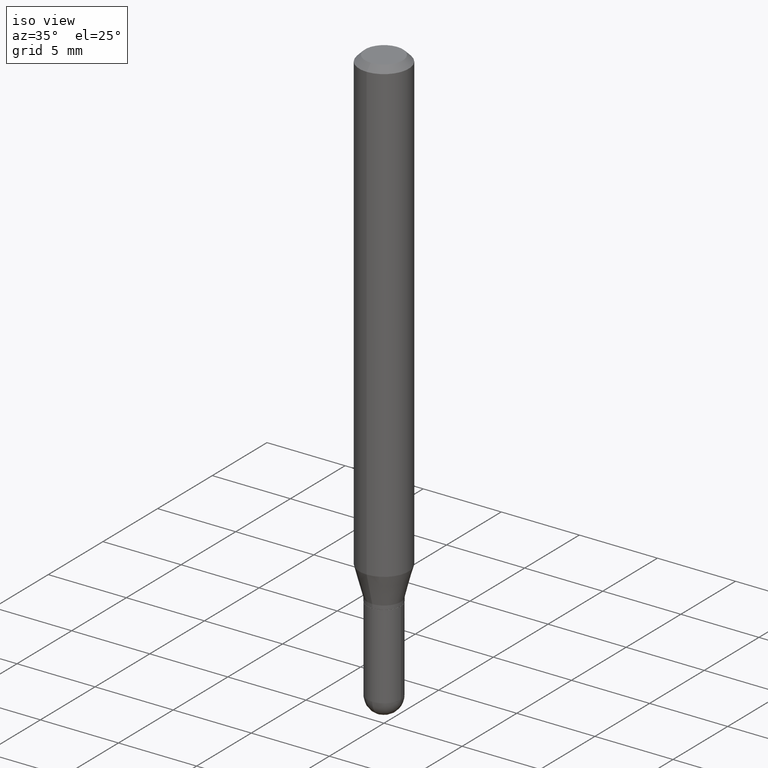
[diagram: clean part render]
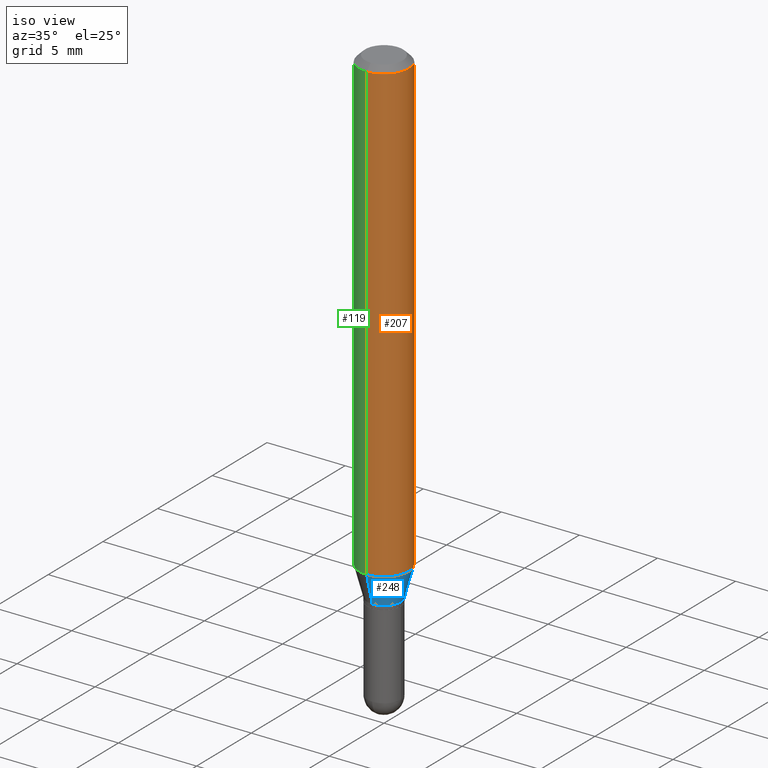
[diagram: same view with three faces highlighted in distinct colors, each labeled with its STEP entity id]
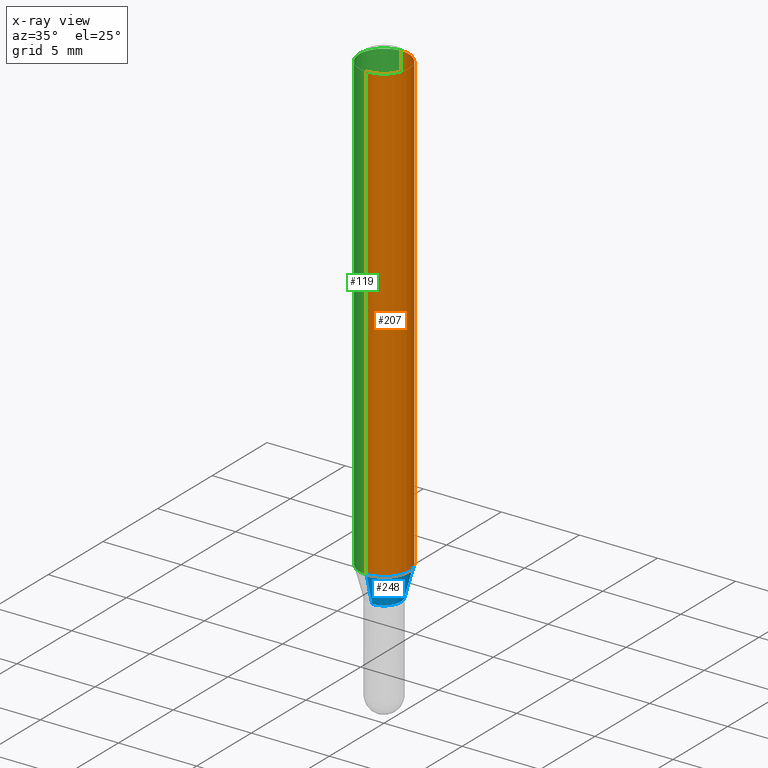
[diagram: x-ray of the same camera — body ghosted, the three highlighted faces saturated]
A machine part, iso view with three faces highlighted in distinct colors.
The next image is the same camera in x-ray (body ghosted, the three faces saturated) — at least one of them is partly hidden behind the body in this view.
Their STEP definitions:

[orange] entity #207 — the highlighted cylindrical surface (edge-blend (fillet) strip) has radius 1.5875 mm, axis along (-0, 0, 1).
#6 = EDGE_CURVE ( 'NONE', #243, #298, #480, .T. ) ;
#13 = DIRECTION ( 'NONE',  ( -2.445524153731471341E-29, 3.491402078006607573E-15, 1.000000000000000000 ) ) ;
#29 = CARTESIAN_POINT ( 'NONE',  ( 4.440892098500911138E-16, 0.06249999999999995143, -0.01500000000000022669 ) ) ;
#35 = LINE ( 'NONE', #237, #300 ) ;
#63 = VECTOR ( 'NONE', #71, 39.37007874015748143 ) ;
#71 = DIRECTION ( 'NONE',  ( -2.445524153731471341E-29, 3.491402078006607967E-15, 1.000000000000000000 ) ) ;
#98 = DIRECTION ( 'NONE',  ( -6.982962677686265922E-15, -1.000000000000000000, 4.370956789862821150E-15 ) ) ;
#104 = DIRECTION ( 'NONE',  ( -6.982962677686265922E-15, -1.000000000000000000, 3.483106191921935554E-15 ) ) ;
#109 = DIRECTION ( 'NONE',  ( -6.982962677686265922E-15, -1.000000000000000000, 3.491402078006607573E-15 ) ) ;
#142 = CARTESIAN_POINT ( 'NONE',  ( 3.668286230597209534E-31, -5.237103117009914490E-17, -0.01500000000000000812 ) ) ;
#146 = EDGE_CURVE ( 'NONE', #298, #458, #206, .T. ) ;
#148 = CARTESIAN_POINT ( 'NONE',  ( 4.440892098500625669E-16, 0.06250000000000000000, -2.182126298754129733E-16 ) ) ;
#150 = CARTESIAN_POINT ( 'NONE',  ( -4.364351673553912750E-16, -0.06250000000000005551, -0.01499999999999979128 ) ) ;
#155 = CIRCLE ( 'NONE', #357, 0.06250000000000000000 ) ;
#206 = LINE ( 'NONE', #148, #63 ) ;
#207 = ADVANCED_FACE ( 'NONE', ( #454 ), #419, .T. ) ;
#215 = EDGE_CURVE ( 'NONE', #354, #458, #155, .T. ) ;
#224 = DIRECTION ( 'NONE',  ( -2.445524153731471341E-29, 3.491402078006607573E-15, 1.000000000000000000 ) ) ;
#227 = CARTESIAN_POINT ( 'NONE',  ( 4.440892098500911138E-16, 0.06249999999999597544, -1.160358983848622794 ) ) ;
#237 = CARTESIAN_POINT ( 'NONE',  ( -4.364351673553916201E-16, -0.06250000000000000000, 2.182126298754129733E-16 ) ) ;
#241 = AXIS2_PLACEMENT_3D ( 'NONE', #369, #224, #109 ) ;
#243 = VERTEX_POINT ( 'NONE', #417 ) ;
#271 = ORIENTED_EDGE ( 'NONE', *, *, #215, .F. ) ;
#298 = VERTEX_POINT ( 'NONE', #227 ) ;
#300 = VECTOR ( 'NONE', #503, 39.37007874015748143 ) ;
#303 = ORIENTED_EDGE ( 'NONE', *, *, #146, .T. ) ;
#338 = EDGE_CURVE ( 'NONE', #243, #354, #35, .T. ) ;
#354 = VERTEX_POINT ( 'NONE', #150 ) ;
#357 = AXIS2_PLACEMENT_3D ( 'NONE', #142, #13, #104 ) ;
#369 = CARTESIAN_POINT ( 'NONE',  ( 0.000000000000000000, 0.000000000000000000, 0.000000000000000000 ) ) ;
#370 = ORIENTED_EDGE ( 'NONE', *, *, #338, .F. ) ;
#372 = AXIS2_PLACEMENT_3D ( 'NONE', #446, #477, #98 ) ;
#385 = ORIENTED_EDGE ( 'NONE', *, *, #6, .T. ) ;
#417 = CARTESIAN_POINT ( 'NONE',  ( -4.364351673553629253E-16, -0.06250000000000401068, -1.160358983848622128 ) ) ;
#419 = CYLINDRICAL_SURFACE ( 'NONE', #241, 0.06250000000000000000 ) ;
#446 = CARTESIAN_POINT ( 'NONE',  ( 2.837685922001112883E-29, -4.051279767442715559E-15, -1.160358983848622572 ) ) ;
#454 = FACE_OUTER_BOUND ( 'NONE', #462, .T. ) ;
#458 = VERTEX_POINT ( 'NONE', #29 ) ;
#462 = EDGE_LOOP ( 'NONE', ( #385, #303, #271, #370 ) ) ;
#477 = DIRECTION ( 'NONE',  ( -2.445524153731471341E-29, 3.491402078006607573E-15, 1.000000000000000000 ) ) ;
#480 = CIRCLE ( 'NONE', #372, 0.06250000000000000000 ) ;
#503 = DIRECTION ( 'NONE',  ( -2.445524153731471341E-29, 3.491402078006607967E-15, 1.000000000000000000 ) ) ;

[blue] entity #248 — the highlighted conical surface has half-angle 15 deg.
#6 = EDGE_CURVE ( 'NONE', #243, #298, #480, .T. ) ;
#24 = DIRECTION ( 'NONE',  ( -2.445524153731471341E-29, 3.491402078006607573E-15, 1.000000000000000000 ) ) ;
#34 = ORIENTED_EDGE ( 'NONE', *, *, #277, .F. ) ;
#38 = AXIS2_PLACEMENT_3D ( 'NONE', #336, #24, #451 ) ;
#58 = VERTEX_POINT ( 'NONE', #209 ) ;
#98 = DIRECTION ( 'NONE',  ( -6.982962677686265922E-15, -1.000000000000000000, 4.370956789862821150E-15 ) ) ;
#158 = VERTEX_POINT ( 'NONE', #294 ) ;
#180 = VECTOR ( 'NONE', #499, 39.37007874015748143 ) ;
#185 = FACE_OUTER_BOUND ( 'NONE', #475, .T. ) ;
#187 = CARTESIAN_POINT ( 'NONE',  ( -2.967759138016355400E-16, -0.04250000000000423578, -1.234999999999999876 ) ) ;
#193 = LINE ( 'NONE', #345, #180 ) ;
#199 = ORIENTED_EDGE ( 'NONE', *, *, #450, .T. ) ;
#209 = CARTESIAN_POINT ( 'NONE',  ( -2.967759138016355400E-16, -0.04250000000000423578, -1.234999999999999876 ) ) ;
#218 = DIRECTION ( 'NONE',  ( -1.807323732225329350E-15, -0.2588190451025180194, 0.9659258262890689783 ) ) ;
#227 = CARTESIAN_POINT ( 'NONE',  ( 4.440892098500911138E-16, 0.06249999999999597544, -1.160358983848622794 ) ) ;
#229 = DIRECTION ( 'NONE',  ( -6.982962677686266711E-15, -1.000000000000000000, 6.427877632151220009E-15 ) ) ;
#243 = VERTEX_POINT ( 'NONE', #417 ) ;
#248 = ADVANCED_FACE ( 'NONE', ( #185 ), #301, .T. ) ;
#266 = LINE ( 'NONE', #187, #382 ) ;
#277 = EDGE_CURVE ( 'NONE', #58, #243, #266, .T. ) ;
#282 = CARTESIAN_POINT ( 'NONE',  ( 3.020222329858367571E-29, -4.311881566338161202E-15, -1.235000000000000098 ) ) ;
#294 = CARTESIAN_POINT ( 'NONE',  ( 3.730349362740815744E-16, 0.04249999999999561073, -1.235000000000000320 ) ) ;
#298 = VERTEX_POINT ( 'NONE', #227 ) ;
#301 = CONICAL_SURFACE ( 'NONE', #38, 0.04249999999999991979, 0.2617993877991501850 ) ;
#318 = ORIENTED_EDGE ( 'NONE', *, *, #463, .T. ) ;
#336 = CARTESIAN_POINT ( 'NONE',  ( 3.020222329858367571E-29, -4.311881566338161202E-15, -1.235000000000000098 ) ) ;
#345 = CARTESIAN_POINT ( 'NONE',  ( 3.019806626980721830E-16, 0.04249999999999561073, -1.235000000000000320 ) ) ;
#372 = AXIS2_PLACEMENT_3D ( 'NONE', #446, #477, #98 ) ;
#382 = VECTOR ( 'NONE', #218, 39.37007874015749564 ) ;
#399 = AXIS2_PLACEMENT_3D ( 'NONE', #282, #440, #229 ) ;
#417 = CARTESIAN_POINT ( 'NONE',  ( -4.364351673553629253E-16, -0.06250000000000401068, -1.160358983848622128 ) ) ;
#440 = DIRECTION ( 'NONE',  ( -2.445524153731471341E-29, 3.491402078006607573E-15, 1.000000000000000000 ) ) ;
#446 = CARTESIAN_POINT ( 'NONE',  ( 2.837685922001112883E-29, -4.051279767442715559E-15, -1.160358983848622572 ) ) ;
#450 = EDGE_CURVE ( 'NONE', #58, #158, #489, .T. ) ;
#451 = DIRECTION ( 'NONE',  ( -6.982962677686266711E-15, -1.000000000000000000, 6.427877632151220009E-15 ) ) ;
#452 = ORIENTED_EDGE ( 'NONE', *, *, #6, .F. ) ;
#463 = EDGE_CURVE ( 'NONE', #158, #298, #193, .T. ) ;
#475 = EDGE_LOOP ( 'NONE', ( #199, #318, #452, #34 ) ) ;
#477 = DIRECTION ( 'NONE',  ( -2.445524153731471341E-29, 3.491402078006607573E-15, 1.000000000000000000 ) ) ;
#480 = CIRCLE ( 'NONE', #372, 0.06250000000000000000 ) ;
#489 = CIRCLE ( 'NONE', #399, 0.04249999999999991979 ) ;
#499 = DIRECTION ( 'NONE',  ( 1.839019923739599526E-15, 0.2588190451025248473, 0.9659258262890670910 ) ) ;

[green] entity #119 — the highlighted cylindrical surface (edge-blend (fillet) strip) has radius 1.5875 mm, axis along (-0, 0, 1).
#8 = DIRECTION ( 'NONE',  ( -6.982962677686265922E-15, -1.000000000000000000, 3.491402078006607573E-15 ) ) ;
#29 = CARTESIAN_POINT ( 'NONE',  ( 4.440892098500911138E-16, 0.06249999999999995143, -0.01500000000000022669 ) ) ;
#31 = ORIENTED_EDGE ( 'NONE', *, *, #146, .F. ) ;
#35 = LINE ( 'NONE', #237, #300 ) ;
#56 = DIRECTION ( 'NONE',  ( -2.445524153731471341E-29, 3.491402078006607573E-15, 1.000000000000000000 ) ) ;
#63 = VECTOR ( 'NONE', #71, 39.37007874015748143 ) ;
#71 = DIRECTION ( 'NONE',  ( -2.445524153731471341E-29, 3.491402078006607967E-15, 1.000000000000000000 ) ) ;
#72 = EDGE_LOOP ( 'NONE', ( #31, #101, #311, #120 ) ) ;
#80 = DIRECTION ( 'NONE',  ( -6.982962677686265922E-15, -1.000000000000000000, 4.370956789862821150E-15 ) ) ;
#85 = EDGE_CURVE ( 'NONE', #458, #354, #299, .T. ) ;
#97 = CIRCLE ( 'NONE', #276, 0.06250000000000000000 ) ;
#101 = ORIENTED_EDGE ( 'NONE', *, *, #410, .T. ) ;
#119 = ADVANCED_FACE ( 'NONE', ( #244 ), #204, .T. ) ;
#120 = ORIENTED_EDGE ( 'NONE', *, *, #85, .F. ) ;
#146 = EDGE_CURVE ( 'NONE', #298, #458, #206, .T. ) ;
#148 = CARTESIAN_POINT ( 'NONE',  ( 4.440892098500625669E-16, 0.06250000000000000000, -2.182126298754129733E-16 ) ) ;
#150 = CARTESIAN_POINT ( 'NONE',  ( -4.364351673553912750E-16, -0.06250000000000005551, -0.01499999999999979128 ) ) ;
#204 = CYLINDRICAL_SURFACE ( 'NONE', #406, 0.06250000000000000000 ) ;
#206 = LINE ( 'NONE', #148, #63 ) ;
#227 = CARTESIAN_POINT ( 'NONE',  ( 4.440892098500911138E-16, 0.06249999999999597544, -1.160358983848622794 ) ) ;
#237 = CARTESIAN_POINT ( 'NONE',  ( -4.364351673553916201E-16, -0.06250000000000000000, 2.182126298754129733E-16 ) ) ;
#239 = CARTESIAN_POINT ( 'NONE',  ( 2.837685922001112883E-29, -4.051279767442715559E-15, -1.160358983848622572 ) ) ;
#243 = VERTEX_POINT ( 'NONE', #417 ) ;
#244 = FACE_OUTER_BOUND ( 'NONE', #72, .T. ) ;
#276 = AXIS2_PLACEMENT_3D ( 'NONE', #239, #500, #80 ) ;
#298 = VERTEX_POINT ( 'NONE', #227 ) ;
#299 = CIRCLE ( 'NONE', #325, 0.06250000000000000000 ) ;
#300 = VECTOR ( 'NONE', #503, 39.37007874015748143 ) ;
#311 = ORIENTED_EDGE ( 'NONE', *, *, #338, .T. ) ;
#321 = DIRECTION ( 'NONE',  ( -6.982962677686265922E-15, -1.000000000000000000, 3.483106191921935554E-15 ) ) ;
#324 = CARTESIAN_POINT ( 'NONE',  ( 3.668286230597209534E-31, -5.237103117009914490E-17, -0.01500000000000000812 ) ) ;
#325 = AXIS2_PLACEMENT_3D ( 'NONE', #324, #56, #321 ) ;
#338 = EDGE_CURVE ( 'NONE', #243, #354, #35, .T. ) ;
#354 = VERTEX_POINT ( 'NONE', #150 ) ;
#406 = AXIS2_PLACEMENT_3D ( 'NONE', #512, #483, #8 ) ;
#410 = EDGE_CURVE ( 'NONE', #298, #243, #97, .T. ) ;
#417 = CARTESIAN_POINT ( 'NONE',  ( -4.364351673553629253E-16, -0.06250000000000401068, -1.160358983848622128 ) ) ;
#458 = VERTEX_POINT ( 'NONE', #29 ) ;
#483 = DIRECTION ( 'NONE',  ( -2.445524153731471341E-29, 3.491402078006607573E-15, 1.000000000000000000 ) ) ;
#500 = DIRECTION ( 'NONE',  ( -2.445524153731471341E-29, 3.491402078006607573E-15, 1.000000000000000000 ) ) ;
#503 = DIRECTION ( 'NONE',  ( -2.445524153731471341E-29, 3.491402078006607967E-15, 1.000000000000000000 ) ) ;
#512 = CARTESIAN_POINT ( 'NONE',  ( 0.000000000000000000, 0.000000000000000000, 0.000000000000000000 ) ) ;